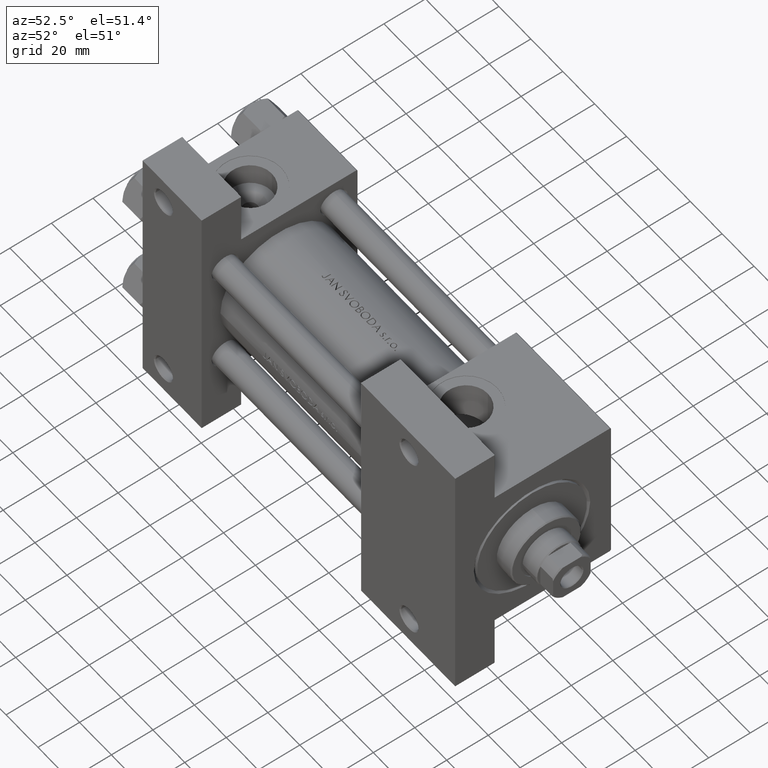
[diagram: clean part render]
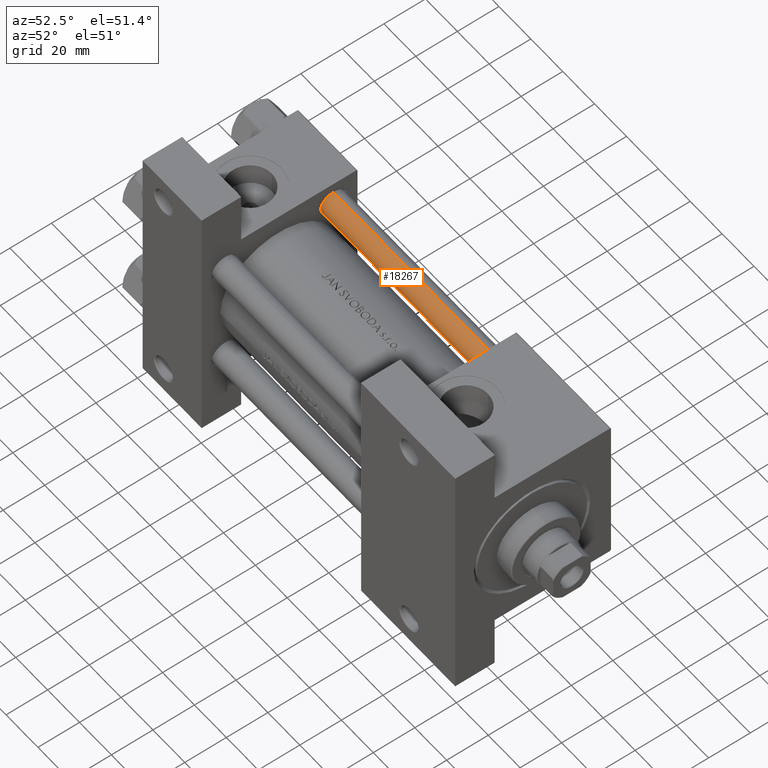
[diagram: same view with one face highlighted and labeled with its STEP entity id]
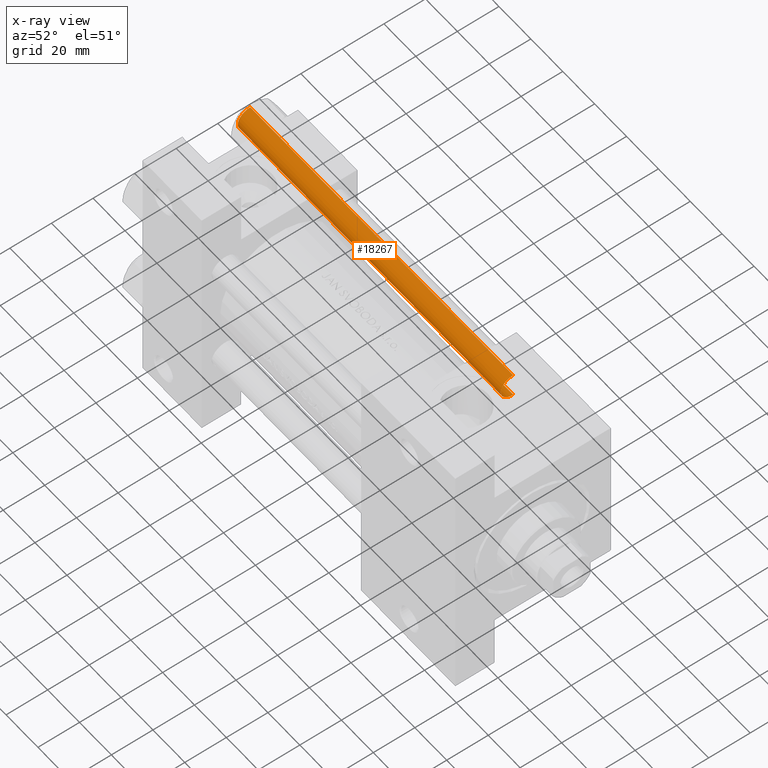
[diagram: x-ray of the same camera — body ghosted, the highlighted face saturated]
A machine part, auxiliary view. The second image highlights one B-rep face of the part: STEP entity #18267.
The next image is the same camera in x-ray: the body ghosted, the highlighted face saturated — about 0% of this face is hidden behind the body in this view.
In plain terms, the highlighted cylindrical surface (edge-blend (fillet) strip) has radius 6 mm, axis along (-1, -0, -0).
Its self-contained STEP definition (entity closure, byte-faithful):
#868 = CARTESIAN_POINT ( 'NONE',  ( -6.000000000000000888, 0.000000000000000000, 165.5000000000000000 ) ) ;
#1100 = CARTESIAN_POINT ( 'NONE',  ( 6.000000000000000888, 7.347880794884120722E-16, 165.5000000000000000 ) ) ;
#3076 = DIRECTION ( 'NONE',  ( 1.000000000000000000, 0.000000000000000000, 0.000000000000000000 ) ) ;
#4052 = ORIENTED_EDGE ( 'NONE', *, *, #8576, .T. ) ;
#4869 = EDGE_CURVE ( 'NONE', #40506, #39000, #42110, .T. ) ;
#6227 = ORIENTED_EDGE ( 'NONE', *, *, #4869, .F. ) ;
#6778 = ORIENTED_EDGE ( 'NONE', *, *, #24644, .T. ) ;
#7338 = DIRECTION ( 'NONE',  ( 0.000000000000000000, 0.000000000000000000, -1.000000000000000000 ) ) ;
#8576 = EDGE_CURVE ( 'NONE', #39174, #39000, #49130, .T. ) ;
#8825 = DIRECTION ( 'NONE',  ( -1.000000000000000000, 0.000000000000000000, 0.000000000000000000 ) ) ;
#9204 = CARTESIAN_POINT ( 'NONE',  ( 6.000000000000000888, 7.347880794884120722E-16, 166.0000000000000000 ) ) ;
#13337 = CARTESIAN_POINT ( 'NONE',  ( 6.000000000000000888, 7.347880794884120722E-16, 0.5000000000000281997 ) ) ;
#14080 = EDGE_CURVE ( 'NONE', #41324, #39174, #29990, .T. ) ;
#15134 = AXIS2_PLACEMENT_3D ( 'NONE', #32995, #7338, #22521 ) ;
#18267 = ADVANCED_FACE ( 'NONE', ( #38938 ), #31489, .T. ) ;
#19013 = DIRECTION ( 'NONE',  ( -0.000000000000000000, -0.000000000000000000, -1.000000000000000000 ) ) ;
#20998 = CARTESIAN_POINT ( 'NONE',  ( 0.000000000000000000, 0.000000000000000000, 0.5000000000000281997 ) ) ;
#22007 = CARTESIAN_POINT ( 'NONE',  ( -6.000000000000000888, 0.000000000000000000, 166.0000000000000000 ) ) ;
#22521 = DIRECTION ( 'NONE',  ( 1.000000000000000000, 0.000000000000000000, 0.000000000000000000 ) ) ;
#24644 = EDGE_CURVE ( 'NONE', #40506, #41324, #43769, .T. ) ;
#24933 = CARTESIAN_POINT ( 'NONE',  ( -6.000000000000000888, 0.000000000000000000, 0.5000000000000281997 ) ) ;
#26457 = ORIENTED_EDGE ( 'NONE', *, *, #14080, .T. ) ;
#27667 = AXIS2_PLACEMENT_3D ( 'NONE', #20998, #36451, #3076 ) ;
#27767 = CARTESIAN_POINT ( 'NONE',  ( 0.000000000000000000, 0.000000000000000000, 166.0000000000000000 ) ) ;
#29990 = LINE ( 'NONE', #22007, #38157 ) ;
#30823 = AXIS2_PLACEMENT_3D ( 'NONE', #27767, #42933, #8825 ) ;
#31489 = CYLINDRICAL_SURFACE ( 'NONE', #30823, 6.000000000000000888 ) ;
#32995 = CARTESIAN_POINT ( 'NONE',  ( 0.000000000000000000, 0.000000000000000000, 165.5000000000000000 ) ) ;
#36451 = DIRECTION ( 'NONE',  ( -0.000000000000000000, -0.000000000000000000, 1.000000000000000000 ) ) ;
#38157 = VECTOR ( 'NONE', #19013, 1000.000000000000000 ) ;
#38659 = VECTOR ( 'NONE', #43068, 1000.000000000000000 ) ;
#38938 = FACE_OUTER_BOUND ( 'NONE', #40831, .T. ) ;
#39000 = VERTEX_POINT ( 'NONE', #13337 ) ;
#39174 = VERTEX_POINT ( 'NONE', #24933 ) ;
#40506 = VERTEX_POINT ( 'NONE', #1100 ) ;
#40831 = EDGE_LOOP ( 'NONE', ( #6227, #6778, #26457, #4052 ) ) ;
#41324 = VERTEX_POINT ( 'NONE', #868 ) ;
#42110 = LINE ( 'NONE', #9204, #38659 ) ;
#42933 = DIRECTION ( 'NONE',  ( -0.000000000000000000, -0.000000000000000000, -1.000000000000000000 ) ) ;
#43068 = DIRECTION ( 'NONE',  ( -0.000000000000000000, -0.000000000000000000, -1.000000000000000000 ) ) ;
#43769 = CIRCLE ( 'NONE', #15134, 6.000000000000000888 ) ;
#49130 = CIRCLE ( 'NONE', #27667, 6.000000000000000888 ) ;